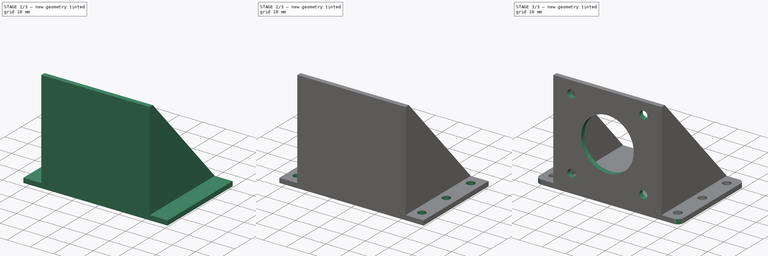
[diagram: build sequence overview — one tinted view per stage of 3, left to right]
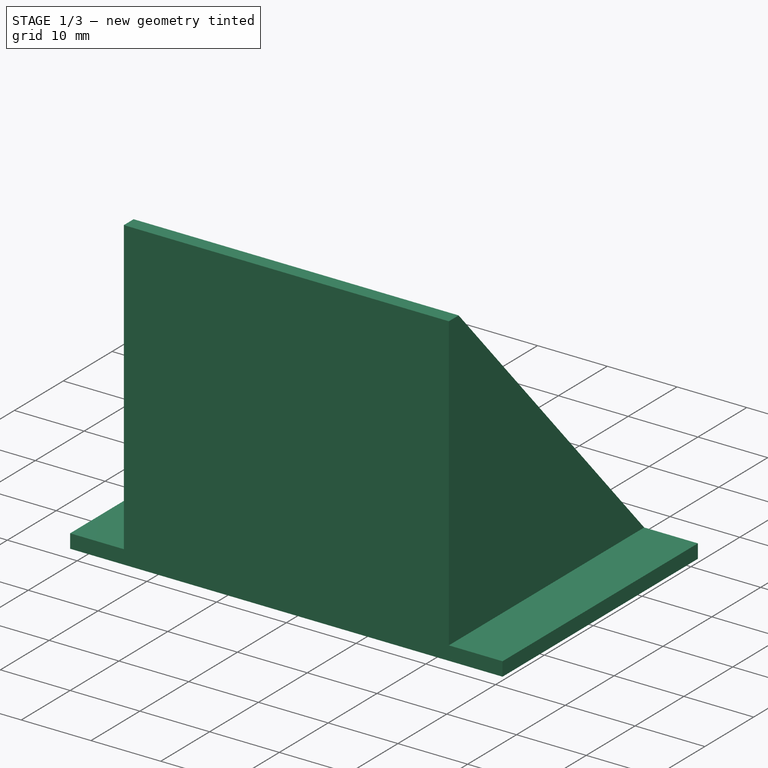
[diagram: stage 1 of 3 — iso view after this stage's code; geometry added in this stage tinted green]
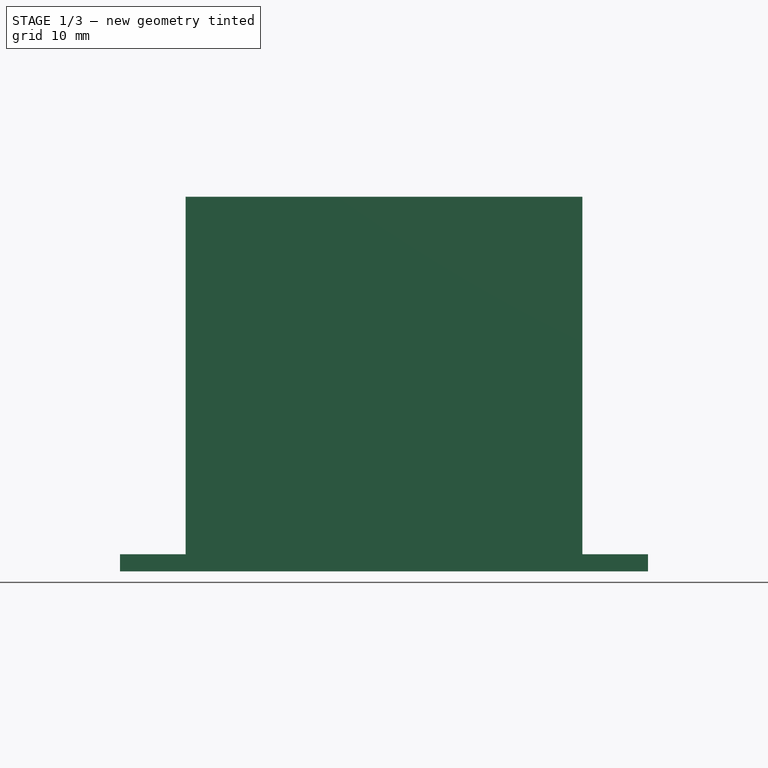
[diagram: stage 1 of 3 — front view after this stage's code; geometry added in this stage tinted green]
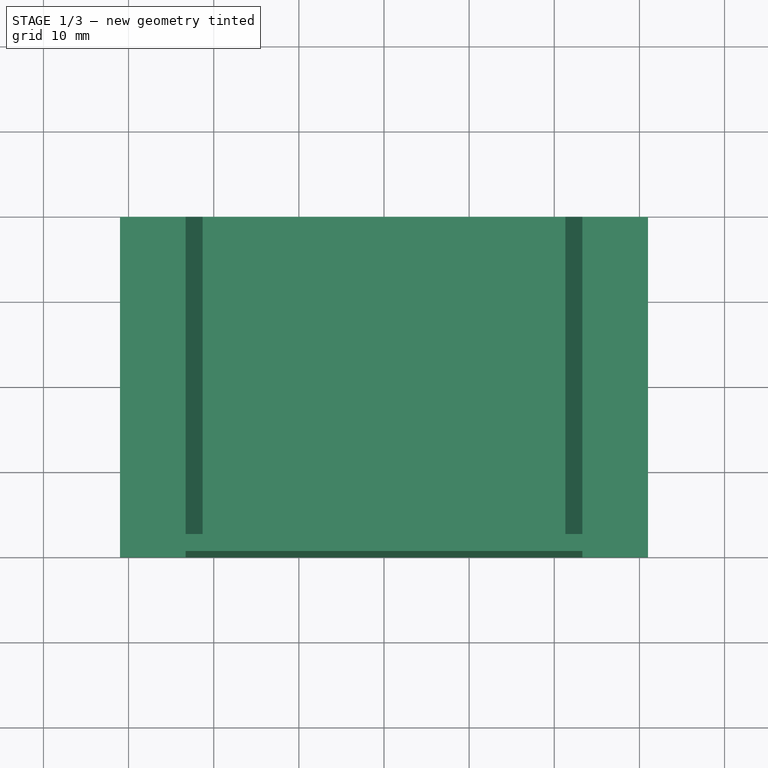
[diagram: stage 1 of 3 — top view after this stage's code; geometry added in this stage tinted green]
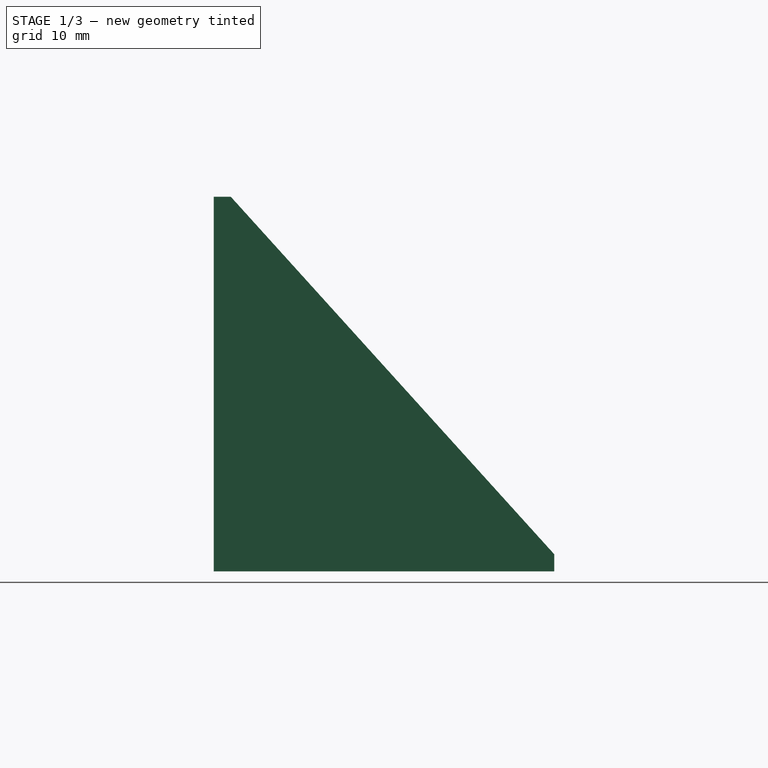
[diagram: stage 1 of 3 — right view after this stage's code; geometry added in this stage tinted green]
FCSTD DOCUMENT  (FreeCAD 0.20R29410 (Git))
Label: _Nema17Mount
License: Creative Commons Attribution
LicenseURL: http://creativecommons.org/licenses/by/4.0/
objects: Sketcher::SketchObject×4, PartDesign::Pocket×3, PartDesign::Pad×1, PartDesign::Fillet×1, PartDesign::Body×1
note: 15 computed .brp shape members not serialized (recipe doc carries the construction recipe); baked Part::Feature solids carry a one-line shape summary decoded from their .brp

FEATURE [Sketcher::SketchObject] Sketch
  FullyConstrained = true
  MapMode = 5
  Placement = pos=(0,0,0) rot=(0.57735,0.57735,0.57735;2.0944rad)
  Support = -> [YZ_Plane]
  sketch-geometry (5):
    g0: LineSegment StartX=0 StartY=44 StartZ=0 EndX=2 EndY=44 EndZ=0
    g1: LineSegment StartX=2 StartY=44 StartZ=0 EndX=40 EndY=2 EndZ=0
    g2: LineSegment StartX=40 StartY=2 StartZ=0 EndX=40 EndY=0 EndZ=0
    g3: LineSegment StartX=40 StartY=0 StartZ=0 EndX=0 EndY=0 EndZ=0
    g4: LineSegment StartX=0 StartY=0 StartZ=0 EndX=0 EndY=44 EndZ=0
  constraints (14):
    c: Horizontal(g0)
    c: Coincident(g0,g1)
    c: Coincident(g1,g2)
    c: Vertical(g2)
    c: Coincident(g2,g3)
    c: Horizontal(g3)
    c: Coincident(g3,g4)
    c: Coincident(g4,g0)
    c: Vertical(g4)
    c: Equal(g0,g2)
    c: DistanceY(g2,g2) = 2
    c: DistanceY(g4,g4) = 44  'hight'
    c: Coincident(g3,g-1)
    c: DistanceX(g3,g3) = 40
FEATURE [PartDesign::Pad] Pad
  Direction = (1,-2e-16,3e-16)
  Length = 62
  Length2 = 10
  Midplane = true
  Placement = pos=(0,0,0) rot=(0.57735,0.57735,0.57735;2.0944rad)
  Profile = -> Sketch
  ReferenceAxis = -> Sketch [N_Axis]
  Type = 0
FEATURE [Sketcher::SketchObject] Sketch001
  AttachmentOffset = pos=(0,0,44) rot=(0,0,1;0rad)
  FullyConstrained = true
  MapMode = 5
  Placement = pos=(0,0,44) rot=(0,0,1;0rad)
  Support = -> [XY_Plane]
  expr: .AttachmentOffset.Base.z = Sketch.Constraints.hight
  sketch-geometry (12):
    g0: LineSegment StartX=-32 StartY=42 StartZ=0 EndX=-32 EndY=-1 EndZ=0
    g1: LineSegment StartX=-32 StartY=-1 StartZ=0 EndX=-23.3 EndY=-1 EndZ=0
    g2: LineSegment StartX=-23.3 StartY=-1 StartZ=0 EndX=-23.3 EndY=41 EndZ=0
    g3: LineSegment StartX=-23.3 StartY=41 StartZ=0 EndX=-21.3 EndY=41 EndZ=0
    g4: LineSegment StartX=-21.3 StartY=41 StartZ=0 EndX=-21.3 EndY=2 EndZ=0
    g5: LineSegment StartX=-21.3 StartY=2 StartZ=0 EndX=21.3 EndY=2 EndZ=0
    g6: LineSegment StartX=21.3 StartY=2 StartZ=0 EndX=21.3 EndY=41 EndZ=0
    g7: LineSegment StartX=21.3 StartY=41 StartZ=0 EndX=23.3 EndY=41 EndZ=0
    g8: LineSegment StartX=23.3 StartY=41 StartZ=0 EndX=23.3 EndY=-1 EndZ=0
    g9: LineSegment StartX=23.3 StartY=-1 StartZ=0 EndX=32 EndY=-1 EndZ=0
    g10: LineSegment StartX=32 StartY=-1 StartZ=0 EndX=32 EndY=42 EndZ=0
    g11: LineSegment StartX=32 StartY=42 StartZ=0 EndX=-32 EndY=42 EndZ=0
  constraints (35):
    c: Vertical(g0)
    c: Coincident(g0,g1)
    c: Horizontal(g1)
    c: Coincident(g1,g2)
    c: Vertical(g2)
    c: Coincident(g2,g3)
    c: Horizontal(g3)
    c: Coincident(g3,g4)
    c: Vertical(g4)
    c: Coincident(g4,g5)
    c: Horizontal(g5)
    c: Coincident(g5,g6)
    c: Vertical(g6)
    c: Coincident(g6,g7)
    c: Coincident(g7,g8)
    c: Vertical(g8)
    c: Coincident(g8,g9)
    c: Horizontal(g9)
    c: Coincident(g9,g10)
    c: Vertical(g10)
    c: Coincident(g10,g11)
    c: Coincident(g11,g0)
    c: Horizontal(g11)
    c: Horizontal(g7)
    c: DistanceY(g-1,g0) = 42
    c: DistanceY(g-1,g2) = 41
    c: Equal(g4,g6)
    c: Symmetric(g0,g9,g-2)
    c: Equal(g9,g1)
    c: DistanceX(g7,g7) = 2
    c: DistanceX(g5,g5) = 42.6
    c: DistanceX(g11,g11) = 64
    c: DistanceY(g-1,g4) = 2
    c: Equal(g3,g7)
    c: DistanceY(g9,g5) = 3
FEATURE [PartDesign::Pocket] Pocket
  BaseFeature = -> Pad
  Direction = (0,0,-1)
  Length = 42
  Length2 = 5
  Placement = pos=(0,0,0) rot=(0.57735,0.57735,0.57735;2.0944rad)
  Profile = -> Sketch001
  ReferenceAxis = -> Sketch001 [N_Axis]
  Type = 0
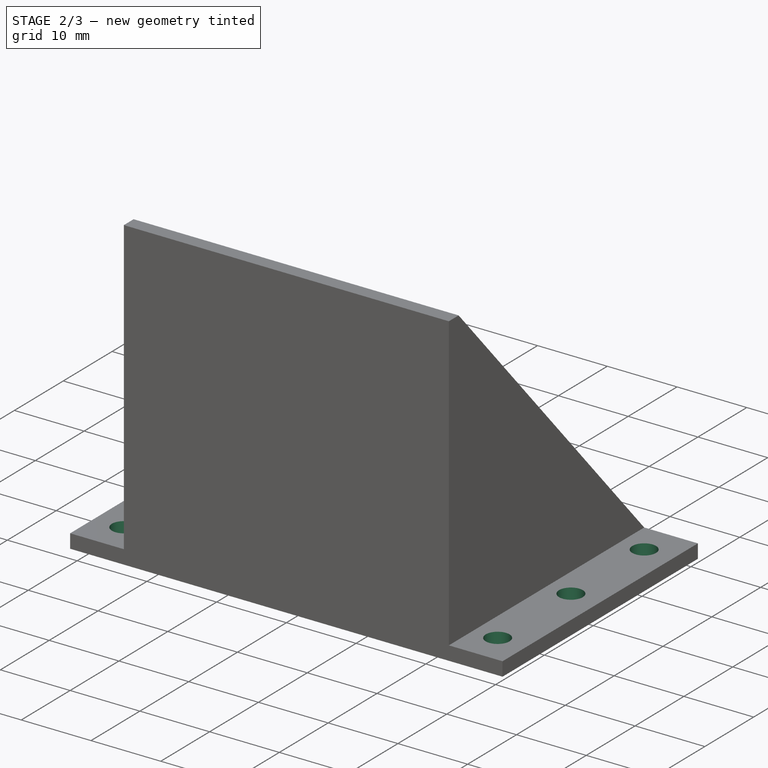
[diagram: stage 2 of 3 — iso view after this stage's code; geometry added in this stage tinted green]
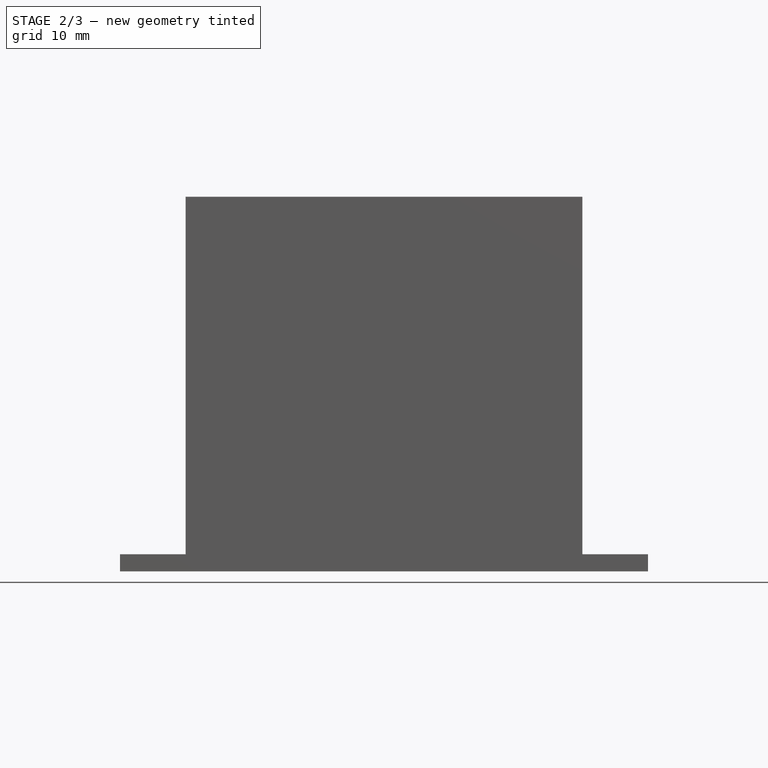
[diagram: stage 2 of 3 — front view after this stage's code; geometry added in this stage tinted green]
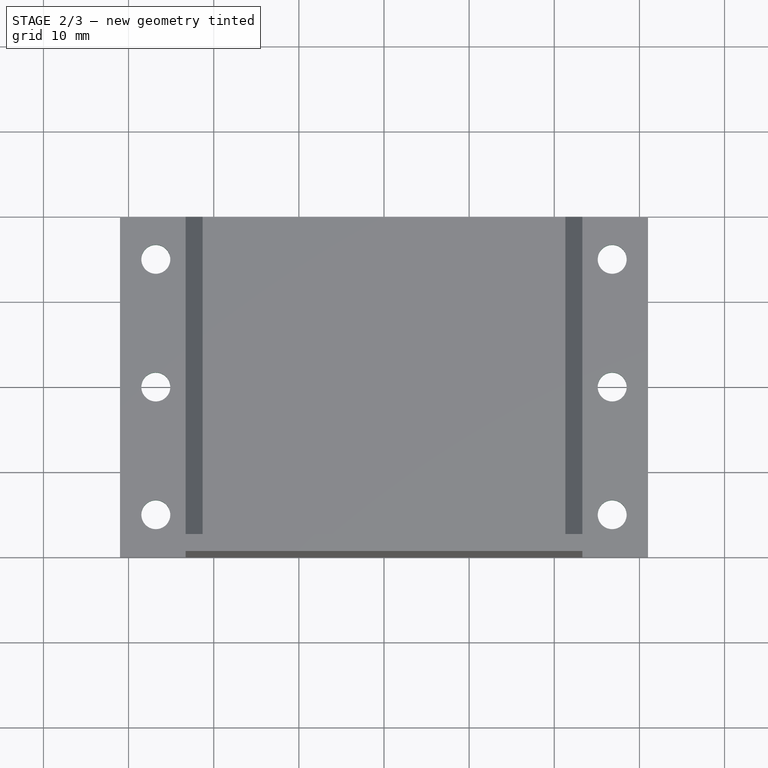
[diagram: stage 2 of 3 — top view after this stage's code; geometry added in this stage tinted green]
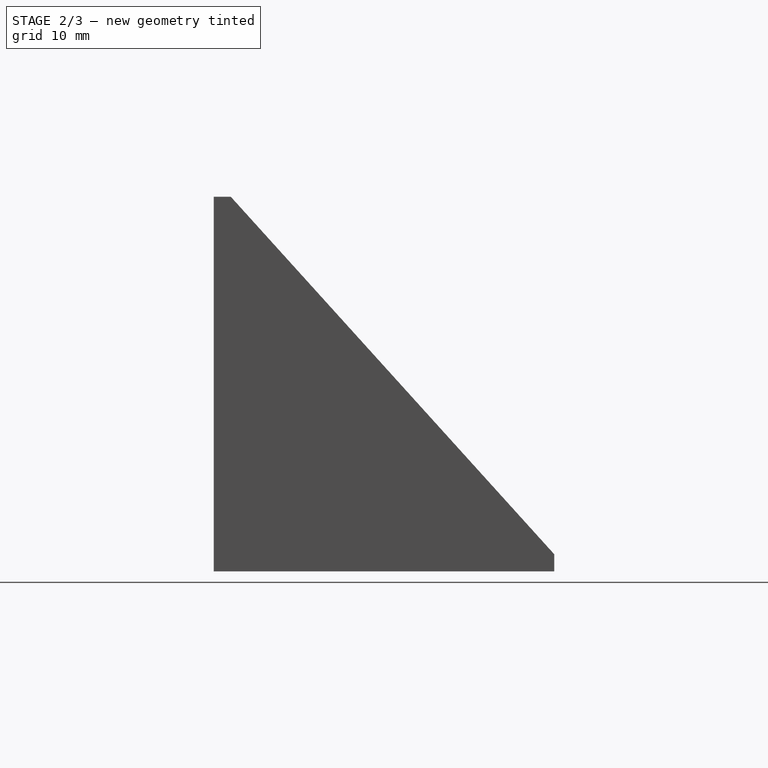
[diagram: stage 2 of 3 — right view after this stage's code; geometry added in this stage tinted green]
FEATURE [Sketcher::SketchObject] Sketch002
  FullyConstrained = true
  MapMode = 5
  Support = -> [XY_Plane]
  sketch-geometry (11):
    g0: LineSegment StartX=-26.8 StartY=35 StartZ=0 EndX=-26.8 EndY=20 EndZ=0
    g1: LineSegment StartX=-26.8 StartY=20 StartZ=0 EndX=-26.8 EndY=5 EndZ=0
    g2: LineSegment StartX=26.8 StartY=35 StartZ=0 EndX=26.8 EndY=20 EndZ=0
    g3: LineSegment StartX=26.8 StartY=20 StartZ=0 EndX=26.8 EndY=5 EndZ=0
    g4: LineSegment StartX=-26.8 StartY=20 StartZ=0 EndX=26.8 EndY=20 EndZ=0
    g5: Circle CenterX=-26.8 CenterY=35 CenterZ=0 NormalX=0 NormalY=0 NormalZ=1 AngleXU=0 Radius=1.7
    g6: Circle CenterX=-26.8 CenterY=20 CenterZ=0 NormalX=0 NormalY=0 NormalZ=1 AngleXU=0 Radius=1.7
    g7: Circle CenterX=-26.8 CenterY=5 CenterZ=0 NormalX=0 NormalY=0 NormalZ=1 AngleXU=0 Radius=1.7
    g8: Circle CenterX=26.8 CenterY=35 CenterZ=0 NormalX=0 NormalY=0 NormalZ=1 AngleXU=0 Radius=1.7
    g9: Circle CenterX=26.8 CenterY=20 CenterZ=0 NormalX=0 NormalY=0 NormalZ=1 AngleXU=0 Radius=1.7
    g10: Circle CenterX=26.8 CenterY=5 CenterZ=0 NormalX=0 NormalY=0 NormalZ=1 AngleXU=0 Radius=1.7
  constraints (27):
    c: Vertical(g0)
    c: Coincident(g1,g0)
    c: Vertical(g1)
    c: Vertical(g2)
    c: Coincident(g3,g2)
    c: Vertical(g3)
    c: Equal(g0,g2)
    c: Equal(g2,g3)
    c: Equal(g3,g1)
    c: Coincident(g4,g0)
    c: Coincident(g4,g2)
    c: Symmetric(g2,g0,g-2)
    c: DistanceY(g-1,g0) = 20
    c: Coincident(g5,g0)
    c: Coincident(g6,g0)
    c: Coincident(g7,g1)
    c: Coincident(g8,g2)
    c: Coincident(g9,g2)
    c: Coincident(g10,g3)
    c: DistanceY(g10,g8) = 30
    c: DistanceX(g7,g10) = 53.6
    c: Equal(g5,g6)
    c: Equal(g6,g7)
    c: Equal(g7,g10)
    c: Equal(g10,g9)
    c: Equal(g9,g8)
    c: Diameter(g5) = 3.4
FEATURE [PartDesign::Pocket] Pocket001
  BaseFeature = -> Pocket
  Direction = (0,0,-1)
  Length = 5
  Length2 = 5
  Placement = pos=(0,0,0) rot=(0.57735,0.57735,0.57735;2.0944rad)
  Profile = -> Sketch002
  ReferenceAxis = -> Sketch002 [N_Axis]
  Reversed = true
  Type = 1
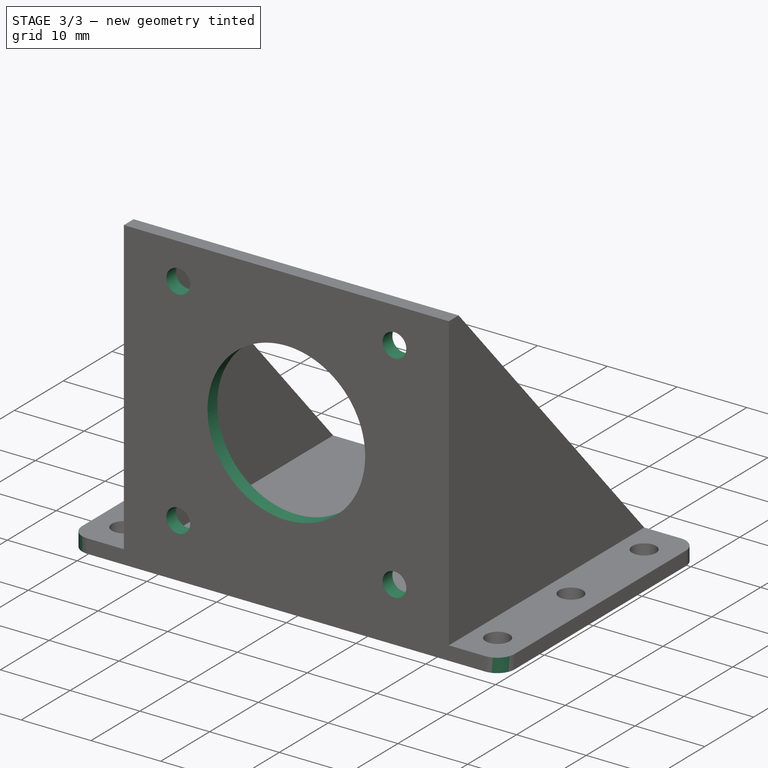
[diagram: stage 3 of 3 — iso view after this stage's code; geometry added in this stage tinted green]
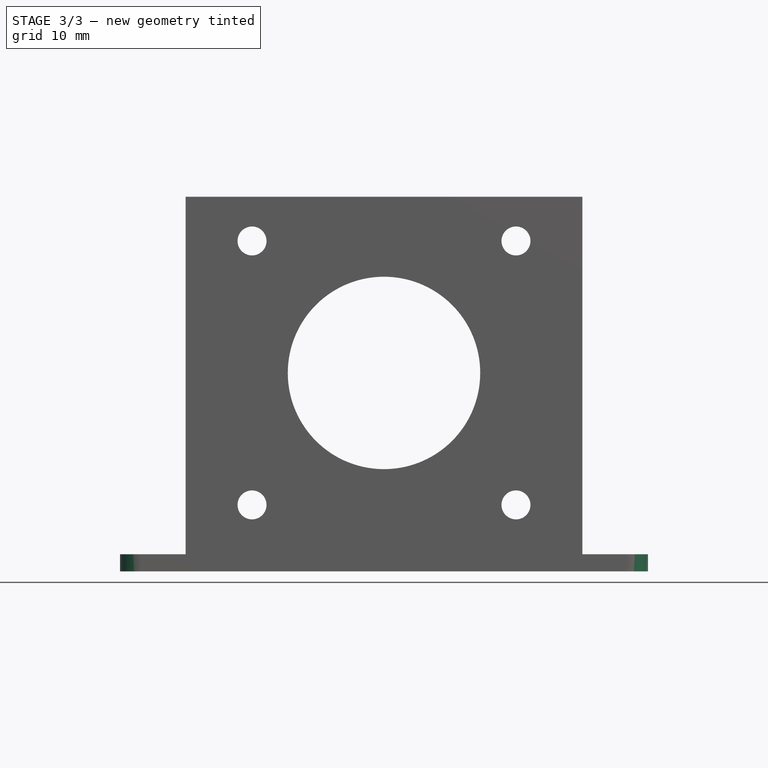
[diagram: stage 3 of 3 — front view after this stage's code; geometry added in this stage tinted green]
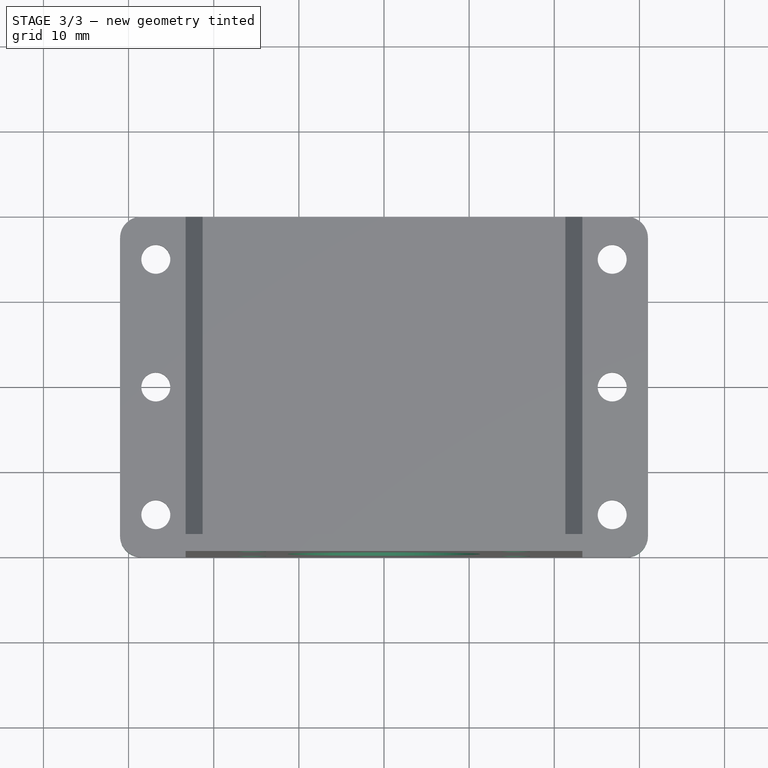
[diagram: stage 3 of 3 — top view after this stage's code; geometry added in this stage tinted green]
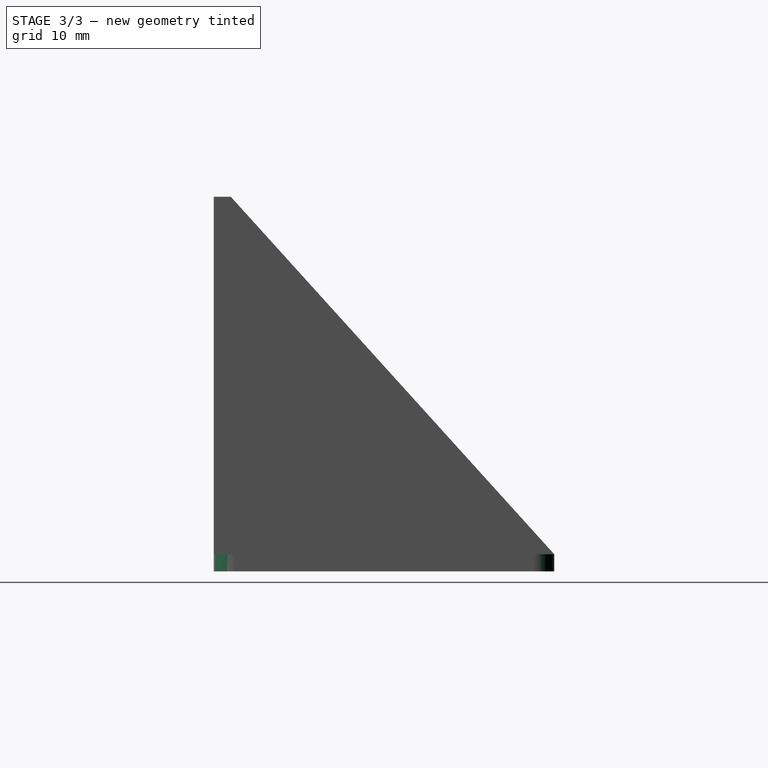
[diagram: stage 3 of 3 — right view after this stage's code; geometry added in this stage tinted green]
FEATURE [Sketcher::SketchObject] Sketch003
  FullyConstrained = true
  MapMode = 5
  Placement = pos=(0,0,0) rot=(1,0,0;1.5708rad)
  Support = -> [XZ_Plane]
  sketch-geometry (10):
    g0: LineSegment StartX=-15.5 StartY=38.8 StartZ=0 EndX=15.5 EndY=38.8 EndZ=0
    g1: LineSegment StartX=15.5 StartY=38.8 StartZ=0 EndX=15.5 EndY=7.8 EndZ=0
    g2: LineSegment StartX=15.5 StartY=7.8 StartZ=0 EndX=-15.5 EndY=7.8 EndZ=0
    g3: LineSegment StartX=-15.5 StartY=7.8 StartZ=0 EndX=-15.5 EndY=38.8 EndZ=0
    g4: GeomPoint X=0 Y=23.3 Z=0
    g5: Circle CenterX=-15.5 CenterY=38.8 CenterZ=0 NormalX=0 NormalY=0 NormalZ=1 AngleXU=0 Radius=1.7
    g6: Circle CenterX=15.5 CenterY=38.8 CenterZ=0 NormalX=0 NormalY=0 NormalZ=1 AngleXU=0 Radius=1.7
    g7: Circle CenterX=15.5 CenterY=7.8 CenterZ=0 NormalX=0 NormalY=0 NormalZ=1 AngleXU=0 Radius=1.7
    g8: Circle CenterX=-15.5 CenterY=7.8 CenterZ=0 NormalX=0 NormalY=0 NormalZ=1 AngleXU=0 Radius=1.7
    g9: Circle CenterX=0 CenterY=23.3 CenterZ=0 NormalX=0 NormalY=0 NormalZ=1 AngleXU=0 Radius=11.3
  constraints (23):
    c: Coincident(g0,g1)
    c: Coincident(g1,g2)
    c: Coincident(g2,g3)
    c: Coincident(g3,g0)
    c: Horizontal(g0)
    c: Horizontal(g2)
    c: Vertical(g1)
    c: Vertical(g3)
    c: PointOnObject(g4,g-2)
    c: Equal(g3,g0)
    c: Symmetric(g2,g0,g4)
    c: DistanceY(g4) = 23.3
    c: Coincident(g5,g0)
    c: Coincident(g6,g0)
    c: Coincident(g7,g1)
    c: Coincident(g8,g2)
    c: Equal(g5,g6)
    c: Equal(g6,g7)
    c: Equal(g7,g8)
    c: Diameter(g7) = 3.4
    c: DistanceX(g0,g0) = 31
    c: Coincident(g9,g4)
    c: Diameter(g9) = 22.6
FEATURE [PartDesign::Pocket] Pocket002
  BaseFeature = -> Pocket001
  Direction = (0,1,2e-16)
  Length = 5
  Length2 = 5
  Placement = pos=(0,0,0) rot=(0.57735,0.57735,0.57735;2.0944rad)
  Profile = -> Sketch003
  ReferenceAxis = -> Sketch003 [N_Axis]
  Type = 1
FEATURE [PartDesign::Fillet] Fillet
  Base = -> Pocket002 [Edge44,Edge28,Edge43,Edge25]
  BaseFeature = -> Pocket002
  Placement = pos=(0,0,0) rot=(0.57735,0.57735,0.57735;2.0944rad)
  Radius = 2.5
  SupportTransform = false
  UseAllEdges = false
FEATURE [PartDesign::Body] Body  label="Nema17Mount"
  Group = -> [Sketch,Pad,Sketch001,Pocket,Sketch002,Pocket001,Sketch003,Pocket002,Fillet]
  Origin = -> Origin
  Tip = -> Fillet
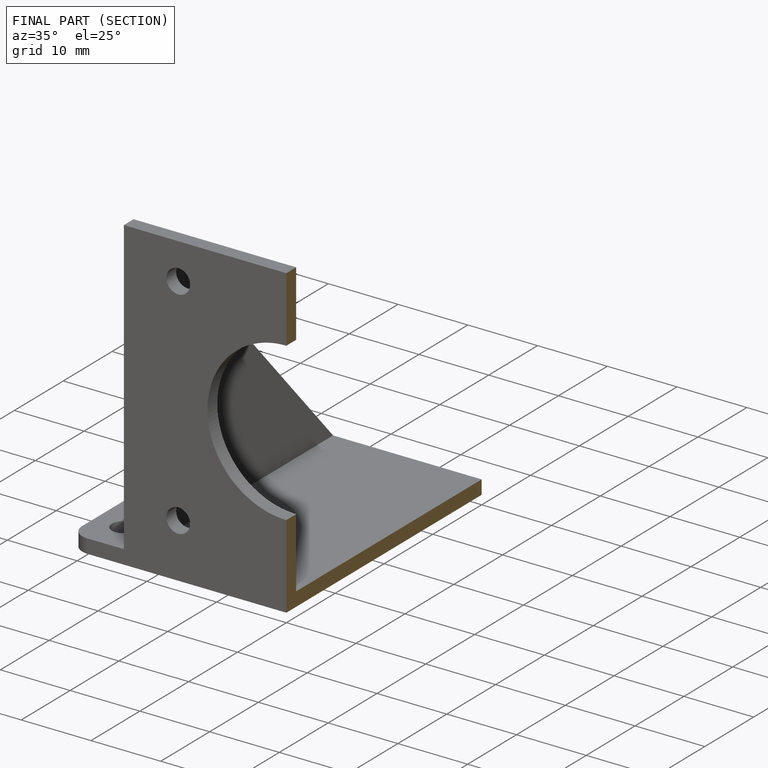
[diagram: finished part — half-section view (interior)]
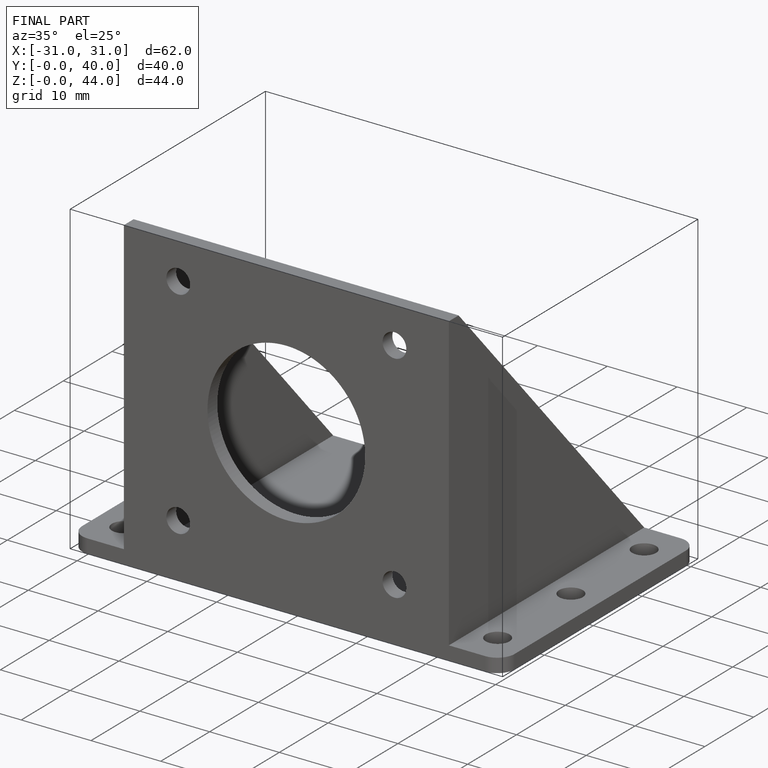
[diagram: finished part — iso view with bounding-box wireframe]
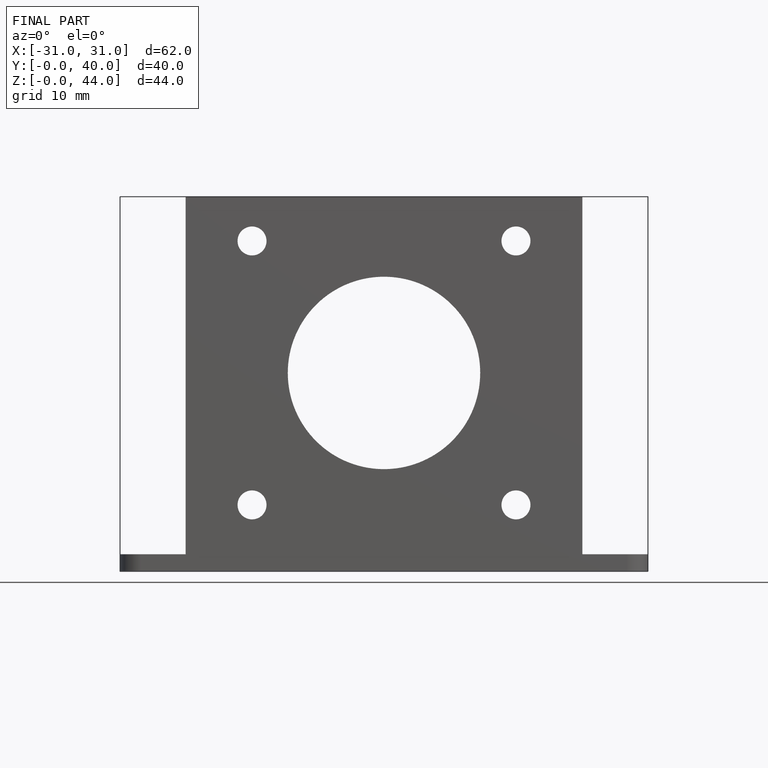
[diagram: finished part — front view with bounding-box wireframe]
